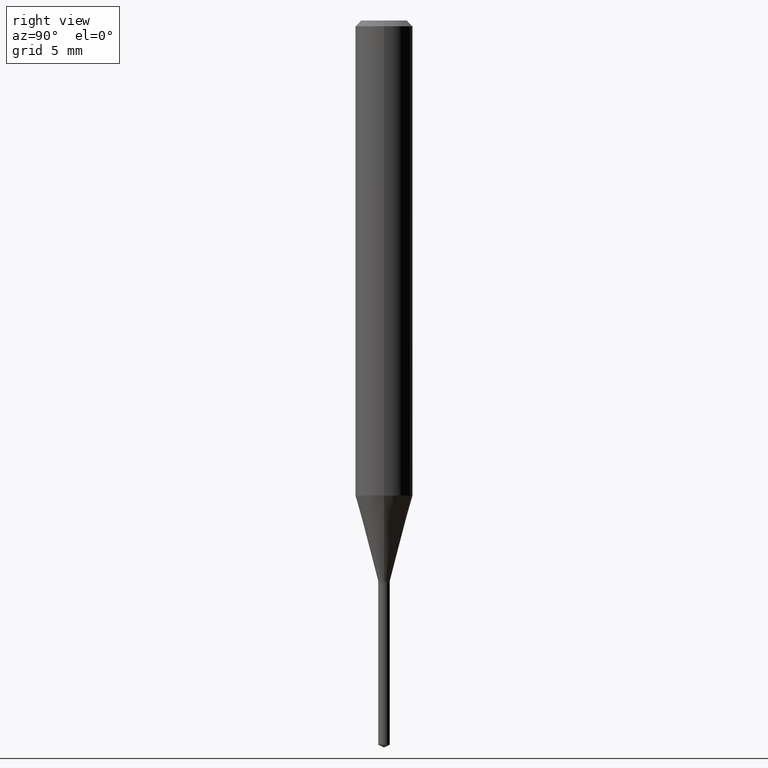
[diagram: clean part render]
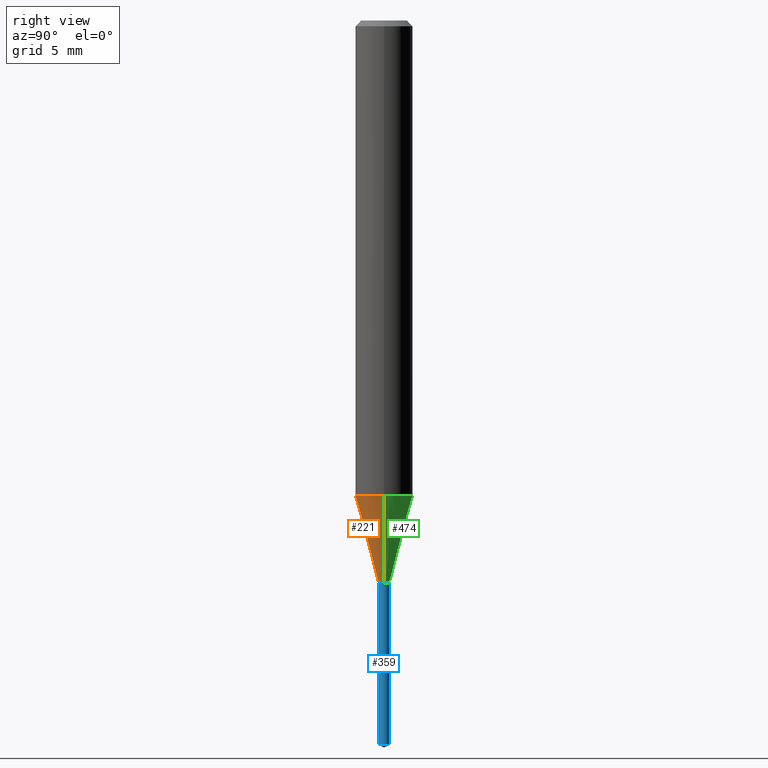
[diagram: same view with three faces highlighted in distinct colors, each labeled with its STEP entity id]
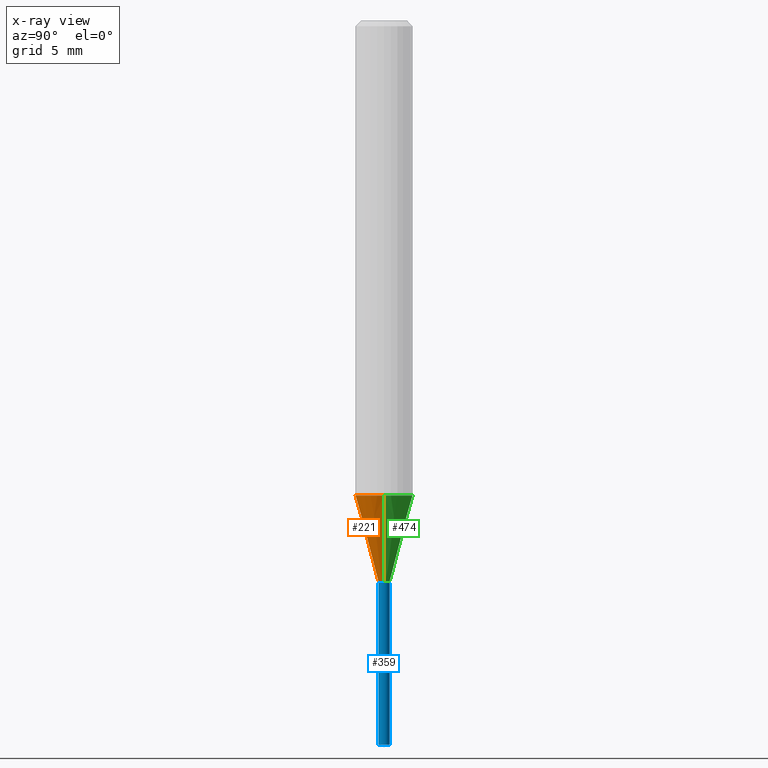
[diagram: x-ray of the same camera — body ghosted, the three highlighted faces saturated]
A machine part, right view with three faces highlighted in distinct colors.
The next image is the same camera in x-ray (body ghosted, the three faces saturated) — at least one of them is partly hidden behind the body in this view.
Their STEP definitions:

[orange] entity #221 — the highlighted conical surface has half-angle 15 deg.
#2 = ORIENTED_EDGE ( 'NONE', *, *, #268, .F. ) ;
#8 = EDGE_LOOP ( 'NONE', ( #2, #287, #109, #311 ) ) ;
#71 = FACE_OUTER_BOUND ( 'NONE', #8, .T. ) ;
#73 = LINE ( 'NONE', #460, #135 ) ;
#77 = VERTEX_POINT ( 'NONE', #172 ) ;
#86 = DIRECTION ( 'NONE',  ( 0.2588190451025213501, 1.565188264969621968E-15, 0.9659258262890682012 ) ) ;
#104 = DIRECTION ( 'NONE',  ( 1.000000000000000000, -6.982962677686258033E-15, 0.000000000000000000 ) ) ;
#109 = ORIENTED_EDGE ( 'NONE', *, *, #449, .T. ) ;
#127 = CIRCLE ( 'NONE', #404, 0.05905000000000013016 ) ;
#135 = VECTOR ( 'NONE', #413, 39.37007874015747433 ) ;
#139 = EDGE_CURVE ( 'NONE', #417, #77, #127, .T. ) ;
#147 = EDGE_CURVE ( 'NONE', #214, #252, #225, .T. ) ;
#156 = AXIS2_PLACEMENT_3D ( 'NONE', #485, #373, #490 ) ;
#172 = CARTESIAN_POINT ( 'NONE',  ( 0.05905000000000011628, -3.825827684443467023E-15, -0.9776605993423704843 ) ) ;
#180 = CARTESIAN_POINT ( 'NONE',  ( 2.822071002337647144E-29, -4.029169465024989587E-15, -1.153999999999999915 ) ) ;
#214 = VERTEX_POINT ( 'NONE', #330 ) ;
#215 = DIRECTION ( 'NONE',  ( -2.445468806185136597E-29, 3.491481338843145583E-15, 1.000000000000000000 ) ) ;
#221 = ADVANCED_FACE ( 'NONE', ( #71 ), #471, .T. ) ;
#225 = CIRCLE ( 'NONE', #242, 0.01180000000000000146 ) ;
#232 = CARTESIAN_POINT ( 'NONE',  ( 0.01180000000000000146, -4.111568424621687711E-15, -1.153999999999999915 ) ) ;
#242 = AXIS2_PLACEMENT_3D ( 'NONE', #180, #215, #104 ) ;
#252 = VERTEX_POINT ( 'NONE', #286 ) ;
#254 = DIRECTION ( 'NONE',  ( 1.000000000000000000, -6.982962677686265133E-15, 0.000000000000000000 ) ) ;
#268 = EDGE_CURVE ( 'NONE', #214, #417, #73, .T. ) ;
#286 = CARTESIAN_POINT ( 'NONE',  ( 0.01180000000000000146, -4.111568424621687711E-15, -1.153999999999999915 ) ) ;
#287 = ORIENTED_EDGE ( 'NONE', *, *, #147, .T. ) ;
#304 = CARTESIAN_POINT ( 'NONE',  ( -0.05905000000000011628, -2.993908252859751821E-15, -0.9776605993423704843 ) ) ;
#311 = ORIENTED_EDGE ( 'NONE', *, *, #139, .F. ) ;
#330 = CARTESIAN_POINT ( 'NONE',  ( -0.01180000000000000146, -3.950562644213562832E-15, -1.153999999999999915 ) ) ;
#366 = CARTESIAN_POINT ( 'NONE',  ( 2.390838498728031811E-29, -3.413483738326091708E-15, -0.9776605993423704843 ) ) ;
#373 = DIRECTION ( 'NONE',  ( -2.445468806185136597E-29, 3.491481338843145583E-15, 1.000000000000000000 ) ) ;
#404 = AXIS2_PLACEMENT_3D ( 'NONE', #366, #489, #254 ) ;
#413 = DIRECTION ( 'NONE',  ( -0.2588190451025213501, 5.211531920934551042E-15, 0.9659258262890682012 ) ) ;
#417 = VERTEX_POINT ( 'NONE', #304 ) ;
#429 = LINE ( 'NONE', #232, #488 ) ;
#449 = EDGE_CURVE ( 'NONE', #252, #77, #429, .T. ) ;
#460 = CARTESIAN_POINT ( 'NONE',  ( -0.01180000000000000146, -3.945325422205298321E-15, -1.153999999999999915 ) ) ;
#471 = CONICAL_SURFACE ( 'NONE', #156, 0.01180000000000000146, 0.2617993877991500740 ) ;
#485 = CARTESIAN_POINT ( 'NONE',  ( 2.822071002337647144E-29, -4.029169465024989587E-15, -1.153999999999999915 ) ) ;
#488 = VECTOR ( 'NONE', #86, 39.37007874015747433 ) ;
#489 = DIRECTION ( 'NONE',  ( -2.445468806185136597E-29, 3.491481338843145583E-15, 1.000000000000000000 ) ) ;
#490 = DIRECTION ( 'NONE',  ( 1.000000000000000000, -6.982962677686258033E-15, 0.000000000000000000 ) ) ;

[blue] entity #359 — the highlighted cylindrical surface (edge-blend (fillet) strip) has radius 0.2997 mm, axis along (-0, 0, 1).
#14 = LINE ( 'NONE', #55, #274 ) ;
#17 = DIRECTION ( 'NONE',  ( -6.982962677686265133E-15, -1.000000000000000000, 0.000000000000000000 ) ) ;
#26 = CIRCLE ( 'NONE', #462, 0.01180000000000000146 ) ;
#41 = EDGE_LOOP ( 'NONE', ( #478, #291, #190, #244 ) ) ;
#48 = EDGE_CURVE ( 'NONE', #260, #80, #315, .T. ) ;
#55 = CARTESIAN_POINT ( 'NONE',  ( 8.384404281972012037E-17, 0.01179999999999595782, -1.157499999999999973 ) ) ;
#60 = VECTOR ( 'NONE', #79, 39.37007874015748143 ) ;
#62 = DIRECTION ( 'NONE',  ( -2.445457056059012515E-29, 3.491498165692530705E-15, 1.000000000000000000 ) ) ;
#69 = EDGE_CURVE ( 'NONE', #80, #203, #14, .T. ) ;
#79 = DIRECTION ( 'NONE',  ( -2.445457056059012515E-29, 3.491498165692530705E-15, 1.000000000000000000 ) ) ;
#80 = VERTEX_POINT ( 'NONE', #246 ) ;
#97 = DIRECTION ( 'NONE',  ( -2.445457056059012515E-29, 3.491498165692530705E-15, 1.000000000000000000 ) ) ;
#103 = DIRECTION ( 'NONE',  ( -6.982962677686265133E-15, -1.000000000000000000, 0.000000000000000000 ) ) ;
#141 = EDGE_CURVE ( 'NONE', #312, #203, #26, .T. ) ;
#145 = DIRECTION ( 'NONE',  ( -2.445457056059012515E-29, 3.491498165692530705E-15, 1.000000000000000000 ) ) ;
#190 = ORIENTED_EDGE ( 'NONE', *, *, #141, .F. ) ;
#195 = FACE_OUTER_BOUND ( 'NONE', #41, .T. ) ;
#203 = VERTEX_POINT ( 'NONE', #210 ) ;
#210 = CARTESIAN_POINT ( 'NONE',  ( 8.384404281972834178E-17, 0.01179999999999595782, -1.157499999999999973 ) ) ;
#234 = AXIS2_PLACEMENT_3D ( 'NONE', #439, #97, #17 ) ;
#244 = ORIENTED_EDGE ( 'NONE', *, *, #363, .F. ) ;
#246 = CARTESIAN_POINT ( 'NONE',  ( 8.384404281972826782E-17, 0.01179999999999479555, -1.490597569633770991 ) ) ;
#249 = CARTESIAN_POINT ( 'NONE',  ( -8.239895959666149116E-17, -0.01180000000000520563, -1.490597569633770991 ) ) ;
#251 = CARTESIAN_POINT ( 'NONE',  ( 2.830630143159295633E-29, -4.041389649710940900E-15, -1.157499999999999973 ) ) ;
#260 = VERTEX_POINT ( 'NONE', #249 ) ;
#262 = CARTESIAN_POINT ( 'NONE',  ( 2.830630143159295633E-29, -4.041389649710940900E-15, -1.157499999999999973 ) ) ;
#274 = VECTOR ( 'NONE', #62, 39.37007874015748143 ) ;
#291 = ORIENTED_EDGE ( 'NONE', *, *, #69, .T. ) ;
#302 = CARTESIAN_POINT ( 'NONE',  ( -8.239895959666962629E-17, -0.01180000000000404337, -1.157499999999999973 ) ) ;
#312 = VERTEX_POINT ( 'NONE', #383 ) ;
#315 = CIRCLE ( 'NONE', #234, 0.01180000000000000146 ) ;
#347 = LINE ( 'NONE', #302, #60 ) ;
#359 = ADVANCED_FACE ( 'NONE', ( #195 ), #419, .T. ) ;
#363 = EDGE_CURVE ( 'NONE', #260, #312, #347, .T. ) ;
#376 = DIRECTION ( 'NONE',  ( -6.982962677686265133E-15, -1.000000000000000000, 0.000000000000000000 ) ) ;
#383 = CARTESIAN_POINT ( 'NONE',  ( -8.239895959666962629E-17, -0.01180000000000404337, -1.157499999999999973 ) ) ;
#419 = CYLINDRICAL_SURFACE ( 'NONE', #421, 0.01180000000000000146 ) ;
#421 = AXIS2_PLACEMENT_3D ( 'NONE', #262, #458, #376 ) ;
#439 = CARTESIAN_POINT ( 'NONE',  ( 3.645205945176309344E-29, -5.204399203083893215E-15, -1.490597569633770991 ) ) ;
#458 = DIRECTION ( 'NONE',  ( -2.445457056059012515E-29, 3.491498165692530705E-15, 1.000000000000000000 ) ) ;
#462 = AXIS2_PLACEMENT_3D ( 'NONE', #251, #145, #103 ) ;
#478 = ORIENTED_EDGE ( 'NONE', *, *, #48, .T. ) ;

[green] entity #474 — the highlighted conical surface has half-angle 15 deg.
#34 = AXIS2_PLACEMENT_3D ( 'NONE', #451, #217, #220 ) ;
#43 = CONICAL_SURFACE ( 'NONE', #166, 0.01180000000000000146, 0.2617993877991500740 ) ;
#54 = DIRECTION ( 'NONE',  ( 1.000000000000000000, -6.982962677686258033E-15, 0.000000000000000000 ) ) ;
#73 = LINE ( 'NONE', #460, #135 ) ;
#77 = VERTEX_POINT ( 'NONE', #172 ) ;
#86 = DIRECTION ( 'NONE',  ( 0.2588190451025213501, 1.565188264969621968E-15, 0.9659258262890682012 ) ) ;
#117 = EDGE_LOOP ( 'NONE', ( #484, #459, #390, #233 ) ) ;
#118 = CIRCLE ( 'NONE', #34, 0.05905000000000013016 ) ;
#135 = VECTOR ( 'NONE', #413, 39.37007874015747433 ) ;
#140 = DIRECTION ( 'NONE',  ( 1.000000000000000000, -6.982962677686258033E-15, 0.000000000000000000 ) ) ;
#144 = EDGE_CURVE ( 'NONE', #77, #417, #118, .T. ) ;
#166 = AXIS2_PLACEMENT_3D ( 'NONE', #313, #237, #54 ) ;
#172 = CARTESIAN_POINT ( 'NONE',  ( 0.05905000000000011628, -3.825827684443467023E-15, -0.9776605993423704843 ) ) ;
#214 = VERTEX_POINT ( 'NONE', #330 ) ;
#217 = DIRECTION ( 'NONE',  ( -2.445468806185136597E-29, 3.491481338843145583E-15, 1.000000000000000000 ) ) ;
#220 = DIRECTION ( 'NONE',  ( 1.000000000000000000, -6.982962677686265133E-15, 0.000000000000000000 ) ) ;
#232 = CARTESIAN_POINT ( 'NONE',  ( 0.01180000000000000146, -4.111568424621687711E-15, -1.153999999999999915 ) ) ;
#233 = ORIENTED_EDGE ( 'NONE', *, *, #449, .F. ) ;
#237 = DIRECTION ( 'NONE',  ( -2.445468806185136597E-29, 3.491481338843145583E-15, 1.000000000000000000 ) ) ;
#238 = EDGE_CURVE ( 'NONE', #252, #214, #282, .T. ) ;
#252 = VERTEX_POINT ( 'NONE', #286 ) ;
#268 = EDGE_CURVE ( 'NONE', #214, #417, #73, .T. ) ;
#282 = CIRCLE ( 'NONE', #486, 0.01180000000000000146 ) ;
#286 = CARTESIAN_POINT ( 'NONE',  ( 0.01180000000000000146, -4.111568424621687711E-15, -1.153999999999999915 ) ) ;
#304 = CARTESIAN_POINT ( 'NONE',  ( -0.05905000000000011628, -2.993908252859751821E-15, -0.9776605993423704843 ) ) ;
#313 = CARTESIAN_POINT ( 'NONE',  ( 2.822071002337647144E-29, -4.029169465024989587E-15, -1.153999999999999915 ) ) ;
#328 = DIRECTION ( 'NONE',  ( -2.445468806185136597E-29, 3.491481338843145583E-15, 1.000000000000000000 ) ) ;
#330 = CARTESIAN_POINT ( 'NONE',  ( -0.01180000000000000146, -3.950562644213562832E-15, -1.153999999999999915 ) ) ;
#368 = CARTESIAN_POINT ( 'NONE',  ( 2.822071002337647144E-29, -4.029169465024989587E-15, -1.153999999999999915 ) ) ;
#390 = ORIENTED_EDGE ( 'NONE', *, *, #144, .F. ) ;
#392 = FACE_OUTER_BOUND ( 'NONE', #117, .T. ) ;
#413 = DIRECTION ( 'NONE',  ( -0.2588190451025213501, 5.211531920934551042E-15, 0.9659258262890682012 ) ) ;
#417 = VERTEX_POINT ( 'NONE', #304 ) ;
#429 = LINE ( 'NONE', #232, #488 ) ;
#449 = EDGE_CURVE ( 'NONE', #252, #77, #429, .T. ) ;
#451 = CARTESIAN_POINT ( 'NONE',  ( 2.390838498728031811E-29, -3.413483738326091708E-15, -0.9776605993423704843 ) ) ;
#459 = ORIENTED_EDGE ( 'NONE', *, *, #268, .T. ) ;
#460 = CARTESIAN_POINT ( 'NONE',  ( -0.01180000000000000146, -3.945325422205298321E-15, -1.153999999999999915 ) ) ;
#474 = ADVANCED_FACE ( 'NONE', ( #392 ), #43, .T. ) ;
#484 = ORIENTED_EDGE ( 'NONE', *, *, #238, .T. ) ;
#486 = AXIS2_PLACEMENT_3D ( 'NONE', #368, #328, #140 ) ;
#488 = VECTOR ( 'NONE', #86, 39.37007874015747433 ) ;